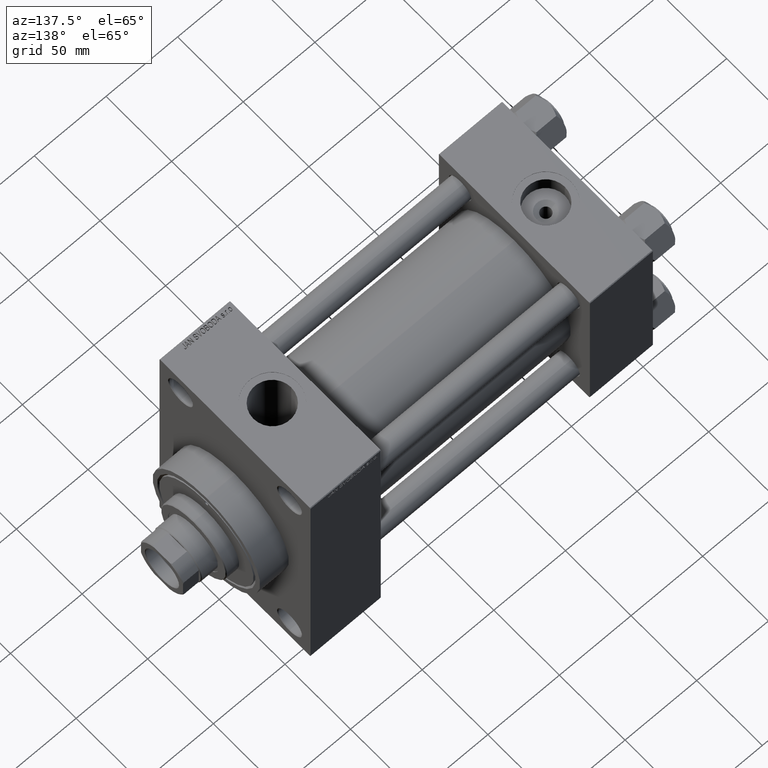
[diagram: clean part render]
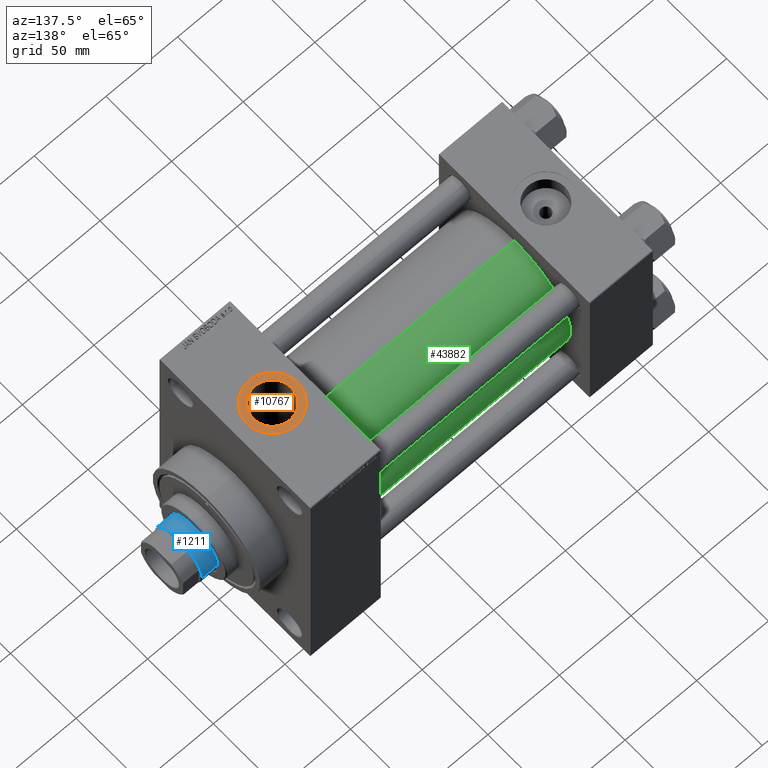
[diagram: same view with three faces highlighted in distinct colors, each labeled with its STEP entity id]
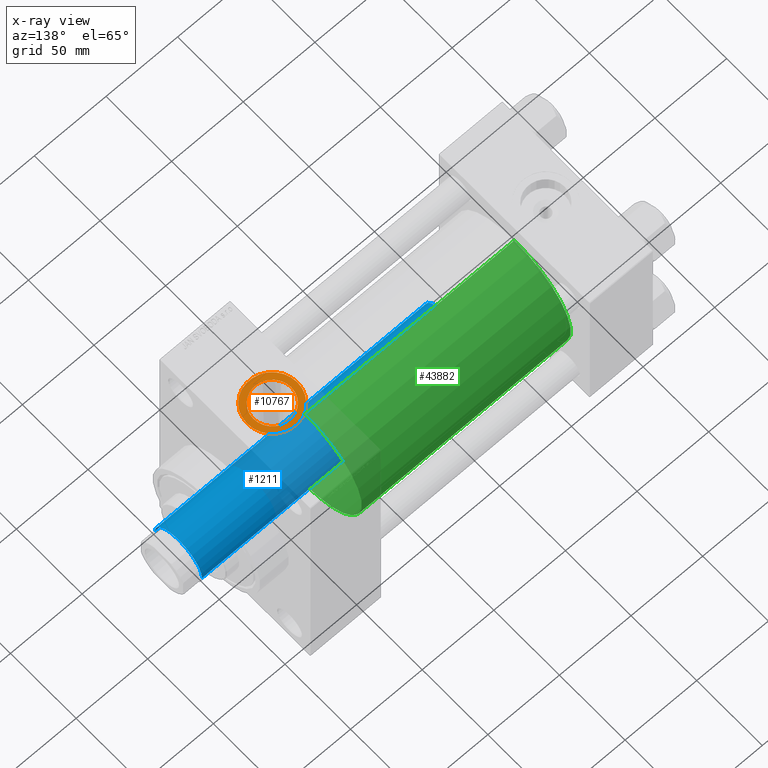
[diagram: x-ray of the same camera — body ghosted, the three highlighted faces saturated]
A machine part, auxiliary view with three faces highlighted in distinct colors.
The next image is the same camera in x-ray (body ghosted, the three faces saturated) — at least one of them is partly hidden behind the body in this view.
Their STEP definitions:

[orange] entity #10767 — the highlighted planar face has unit normal (0, 0, 1).
#707 = AXIS2_PLACEMENT_3D ( 'NONE', #43667, #2758, #2994 ) ;
#836 = DIRECTION ( 'NONE',  ( -0.000000000000000000, -0.000000000000000000, -1.000000000000000000 ) ) ;
#2257 = PLANE ( 'NONE',  #30170 ) ;
#2491 = AXIS2_PLACEMENT_3D ( 'NONE', #40638, #18609, #33363 ) ;
#2578 = ORIENTED_EDGE ( 'NONE', *, *, #7919, .T. ) ;
#2758 = DIRECTION ( 'NONE',  ( -0.000000000000000000, -0.000000000000000000, -1.000000000000000000 ) ) ;
#2783 = DIRECTION ( 'NONE',  ( 0.000000000000000000, 0.000000000000000000, 1.000000000000000000 ) ) ;
#2994 = DIRECTION ( 'NONE',  ( 1.000000000000000000, 0.000000000000000000, 0.000000000000000000 ) ) ;
#3003 = CIRCLE ( 'NONE', #30821, 17.50000000000001421 ) ;
#5165 = DIRECTION ( 'NONE',  ( 0.000000000000000000, 0.000000000000000000, 1.000000000000000000 ) ) ;
#7919 = EDGE_CURVE ( 'NONE', #9497, #17059, #3003, .T. ) ;
#8272 = CARTESIAN_POINT ( 'NONE',  ( 199.7799999999999443, -1.086087741481131350E-14, 89.79999999999998295 ) ) ;
#8566 = CARTESIAN_POINT ( 'NONE',  ( 212.9999999999999716, -1.086087741481131350E-14, 89.79999999999998295 ) ) ;
#9211 = CIRCLE ( 'NONE', #707, 13.22000000000000952 ) ;
#9497 = VERTEX_POINT ( 'NONE', #35021 ) ;
#10767 = ADVANCED_FACE ( 'NONE', ( #31065, #42697 ), #2257, .T. ) ;
#11745 = DIRECTION ( 'NONE',  ( 1.000000000000000000, 0.000000000000000000, 0.000000000000000000 ) ) ;
#15081 = EDGE_CURVE ( 'NONE', #17059, #9497, #27891, .T. ) ;
#15602 = CARTESIAN_POINT ( 'NONE',  ( 212.9999999999999716, -1.086087741481131350E-14, 89.79999999999998295 ) ) ;
#17059 = VERTEX_POINT ( 'NONE', #20530 ) ;
#18534 = VERTEX_POINT ( 'NONE', #31784 ) ;
#18609 = DIRECTION ( 'NONE',  ( 0.000000000000000000, 0.000000000000000000, 1.000000000000000000 ) ) ;
#20530 = CARTESIAN_POINT ( 'NONE',  ( 195.4999999999999432, -8.717745516303440521E-15, 89.79999999999998295 ) ) ;
#20653 = DIRECTION ( 'NONE',  ( 1.000000000000000000, 0.000000000000000000, -0.000000000000000000 ) ) ;
#24368 = ORIENTED_EDGE ( 'NONE', *, *, #41900, .T. ) ;
#25514 = CIRCLE ( 'NONE', #27072, 13.22000000000000952 ) ;
#27072 = AXIS2_PLACEMENT_3D ( 'NONE', #15602, #836, #11745 ) ;
#27891 = CIRCLE ( 'NONE', #2491, 17.50000000000001421 ) ;
#29732 = ORIENTED_EDGE ( 'NONE', *, *, #40003, .T. ) ;
#30170 = AXIS2_PLACEMENT_3D ( 'NONE', #8566, #5165, #20653 ) ;
#30821 = AXIS2_PLACEMENT_3D ( 'NONE', #39347, #2783, #43465 ) ;
#31065 = FACE_BOUND ( 'NONE', #47653, .T. ) ;
#31784 = CARTESIAN_POINT ( 'NONE',  ( 226.2199999999999704, -9.241894346338509984E-15, 89.79999999999998295 ) ) ;
#33363 = DIRECTION ( 'NONE',  ( 1.000000000000000000, 0.000000000000000000, 0.000000000000000000 ) ) ;
#35021 = CARTESIAN_POINT ( 'NONE',  ( 230.4999999999999716, -1.086087741481131350E-14, 89.79999999999998295 ) ) ;
#35259 = ORIENTED_EDGE ( 'NONE', *, *, #15081, .T. ) ;
#38301 = VERTEX_POINT ( 'NONE', #8272 ) ;
#39347 = CARTESIAN_POINT ( 'NONE',  ( 212.9999999999999716, -1.086087741481131350E-14, 89.79999999999998295 ) ) ;
#40003 = EDGE_CURVE ( 'NONE', #38301, #18534, #9211, .T. ) ;
#40638 = CARTESIAN_POINT ( 'NONE',  ( 212.9999999999999716, -1.086087741481131350E-14, 89.79999999999998295 ) ) ;
#41900 = EDGE_CURVE ( 'NONE', #18534, #38301, #25514, .T. ) ;
#42697 = FACE_OUTER_BOUND ( 'NONE', #47834, .T. ) ;
#43465 = DIRECTION ( 'NONE',  ( 1.000000000000000000, 0.000000000000000000, 0.000000000000000000 ) ) ;
#43667 = CARTESIAN_POINT ( 'NONE',  ( 212.9999999999999716, -1.086087741481131350E-14, 89.79999999999998295 ) ) ;
#47653 = EDGE_LOOP ( 'NONE', ( #29732, #24368 ) ) ;
#47834 = EDGE_LOOP ( 'NONE', ( #2578, #35259 ) ) ;

[blue] entity #1211 — the highlighted cylindrical surface (edge-blend (fillet) strip) has radius 18 mm, axis along (-1, 0, 0).
#1211 = ADVANCED_FACE ( 'NONE', ( #9598 ), #32083, .T. ) ;
#1789 = EDGE_CURVE ( 'NONE', #33809, #25564, #42343, .T. ) ;
#4432 = CARTESIAN_POINT ( 'NONE',  ( -18.00000000000000000, 0.000000000000000000, 235.0000000000000000 ) ) ;
#4462 = AXIS2_PLACEMENT_3D ( 'NONE', #46392, #40059, #43696 ) ;
#6149 = CARTESIAN_POINT ( 'NONE',  ( 18.00000000000000000, 2.204364238465235428E-15, 46.00000000000000000 ) ) ;
#7071 = CIRCLE ( 'NONE', #23375, 18.00000000000000000 ) ;
#8510 = DIRECTION ( 'NONE',  ( 1.000000000000000000, 0.000000000000000000, 0.000000000000000000 ) ) ;
#8931 = ORIENTED_EDGE ( 'NONE', *, *, #14401, .T. ) ;
#9598 = FACE_OUTER_BOUND ( 'NONE', #44996, .T. ) ;
#9842 = ORIENTED_EDGE ( 'NONE', *, *, #1789, .T. ) ;
#11150 = VERTEX_POINT ( 'NONE', #16970 ) ;
#11276 = ORIENTED_EDGE ( 'NONE', *, *, #21317, .T. ) ;
#14401 = EDGE_CURVE ( 'NONE', #11150, #37157, #7071, .T. ) ;
#15584 = EDGE_CURVE ( 'NONE', #11150, #25564, #18179, .T. ) ;
#15773 = CARTESIAN_POINT ( 'NONE',  ( 0.000000000000000000, 0.000000000000000000, 46.00000000000000000 ) ) ;
#16970 = CARTESIAN_POINT ( 'NONE',  ( 18.00000000000000000, 2.204364238465235428E-15, 234.5000000000000000 ) ) ;
#17703 = CARTESIAN_POINT ( 'NONE',  ( 18.00000000000000000, 2.204364238465235428E-15, 235.0000000000000000 ) ) ;
#18179 = LINE ( 'NONE', #17703, #31788 ) ;
#18782 = DIRECTION ( 'NONE',  ( 0.000000000000000000, 0.000000000000000000, -1.000000000000000000 ) ) ;
#19674 = DIRECTION ( 'NONE',  ( -0.000000000000000000, -0.000000000000000000, -1.000000000000000000 ) ) ;
#21317 = EDGE_CURVE ( 'NONE', #37157, #33809, #30098, .T. ) ;
#21463 = AXIS2_PLACEMENT_3D ( 'NONE', #15773, #26439, #8510 ) ;
#21817 = DIRECTION ( 'NONE',  ( -0.000000000000000000, -0.000000000000000000, -1.000000000000000000 ) ) ;
#22884 = CARTESIAN_POINT ( 'NONE',  ( 0.000000000000000000, 0.000000000000000000, 234.5000000000000000 ) ) ;
#23375 = AXIS2_PLACEMENT_3D ( 'NONE', #22884, #18782, #26987 ) ;
#25564 = VERTEX_POINT ( 'NONE', #6149 ) ;
#26439 = DIRECTION ( 'NONE',  ( 0.000000000000000000, 0.000000000000000000, 1.000000000000000000 ) ) ;
#26987 = DIRECTION ( 'NONE',  ( 1.000000000000000000, 0.000000000000000000, 0.000000000000000000 ) ) ;
#30098 = LINE ( 'NONE', #4432, #38841 ) ;
#31788 = VECTOR ( 'NONE', #21817, 1000.000000000000000 ) ;
#32083 = CYLINDRICAL_SURFACE ( 'NONE', #4462, 18.00000000000000000 ) ;
#33809 = VERTEX_POINT ( 'NONE', #46356 ) ;
#37157 = VERTEX_POINT ( 'NONE', #41327 ) ;
#38841 = VECTOR ( 'NONE', #19674, 1000.000000000000000 ) ;
#40059 = DIRECTION ( 'NONE',  ( -0.000000000000000000, -0.000000000000000000, -1.000000000000000000 ) ) ;
#41327 = CARTESIAN_POINT ( 'NONE',  ( -18.00000000000000000, 0.000000000000000000, 234.5000000000000000 ) ) ;
#42343 = CIRCLE ( 'NONE', #21463, 18.00000000000000000 ) ;
#43696 = DIRECTION ( 'NONE',  ( -1.000000000000000000, 0.000000000000000000, 0.000000000000000000 ) ) ;
#44665 = ORIENTED_EDGE ( 'NONE', *, *, #15584, .F. ) ;
#44996 = EDGE_LOOP ( 'NONE', ( #44665, #8931, #11276, #9842 ) ) ;
#46356 = CARTESIAN_POINT ( 'NONE',  ( -18.00000000000000000, 0.000000000000000000, 46.00000000000000000 ) ) ;
#46392 = CARTESIAN_POINT ( 'NONE',  ( 0.000000000000000000, 0.000000000000000000, 235.0000000000000000 ) ) ;

[green] entity #43882 — the highlighted cylindrical surface (partial cylindrical patch) has radius 43 mm, axis along (-1, -0, -0).
#739 = AXIS2_PLACEMENT_3D ( 'NONE', #24638, #28735, #6693 ) ;
#3432 = DIRECTION ( 'NONE',  ( 0.000000000000000000, 0.000000000000000000, 1.000000000000000000 ) ) ;
#3845 = AXIS2_PLACEMENT_3D ( 'NONE', #39989, #24762, #3432 ) ;
#5138 = VERTEX_POINT ( 'NONE', #29743 ) ;
#6246 = LINE ( 'NONE', #43299, #13911 ) ;
#6693 = DIRECTION ( 'NONE',  ( 0.000000000000000000, 0.000000000000000000, -1.000000000000000000 ) ) ;
#7244 = CARTESIAN_POINT ( 'NONE',  ( 190.0000000000000000, -2.602085213965210642E-15, 0.000000000000000000 ) ) ;
#10536 = DIRECTION ( 'NONE',  ( -1.000000000000000000, -0.000000000000000000, -0.000000000000000000 ) ) ;
#10743 = ORIENTED_EDGE ( 'NONE', *, *, #41203, .T. ) ;
#10884 = CYLINDRICAL_SURFACE ( 'NONE', #27789, 43.00000000000000000 ) ;
#10978 = CARTESIAN_POINT ( 'NONE',  ( 190.0000000000000000, -2.602085213965210642E-15, 43.00000000000000000 ) ) ;
#12369 = CIRCLE ( 'NONE', #3845, 43.00000000000000000 ) ;
#12522 = LINE ( 'NONE', #24842, #24562 ) ;
#13911 = VECTOR ( 'NONE', #21017, 1000.000000000000000 ) ;
#15321 = VERTEX_POINT ( 'NONE', #23319 ) ;
#16465 = VERTEX_POINT ( 'NONE', #23390 ) ;
#20847 = CIRCLE ( 'NONE', #739, 43.00000000000000000 ) ;
#21017 = DIRECTION ( 'NONE',  ( -1.000000000000000000, -0.000000000000000000, -0.000000000000000000 ) ) ;
#22008 = DIRECTION ( 'NONE',  ( -1.000000000000000000, -0.000000000000000000, -0.000000000000000000 ) ) ;
#23319 = CARTESIAN_POINT ( 'NONE',  ( 43.99999999999998579, -2.602085213965210642E-15, 43.00000000000000000 ) ) ;
#23390 = CARTESIAN_POINT ( 'NONE',  ( 190.0000000000000000, 2.663896022368408223E-15, -43.00000000000000000 ) ) ;
#24562 = VECTOR ( 'NONE', #10536, 1000.000000000000000 ) ;
#24638 = CARTESIAN_POINT ( 'NONE',  ( 190.0000000000000000, -2.602085213965210642E-15, 0.000000000000000000 ) ) ;
#24762 = DIRECTION ( 'NONE',  ( 1.000000000000000000, -0.000000000000000000, 0.000000000000000000 ) ) ;
#24842 = CARTESIAN_POINT ( 'NONE',  ( 190.0000000000000000, 2.663896022368408223E-15, -43.00000000000000000 ) ) ;
#25980 = ORIENTED_EDGE ( 'NONE', *, *, #44123, .F. ) ;
#27789 = AXIS2_PLACEMENT_3D ( 'NONE', #7244, #22008, #36769 ) ;
#28735 = DIRECTION ( 'NONE',  ( 1.000000000000000000, 0.000000000000000000, 0.000000000000000000 ) ) ;
#29743 = CARTESIAN_POINT ( 'NONE',  ( 43.99999999999998579, 2.663896022368408223E-15, -43.00000000000000000 ) ) ;
#29825 = ORIENTED_EDGE ( 'NONE', *, *, #36585, .T. ) ;
#32233 = EDGE_LOOP ( 'NONE', ( #25980, #29825, #10743, #43121 ) ) ;
#36585 = EDGE_CURVE ( 'NONE', #16465, #5138, #12522, .T. ) ;
#36769 = DIRECTION ( 'NONE',  ( 0.000000000000000000, 0.000000000000000000, 1.000000000000000000 ) ) ;
#37711 = VERTEX_POINT ( 'NONE', #10978 ) ;
#39989 = CARTESIAN_POINT ( 'NONE',  ( 43.99999999999998579, -2.602085213965210642E-15, 0.000000000000000000 ) ) ;
#41203 = EDGE_CURVE ( 'NONE', #5138, #15321, #12369, .T. ) ;
#43121 = ORIENTED_EDGE ( 'NONE', *, *, #45874, .F. ) ;
#43299 = CARTESIAN_POINT ( 'NONE',  ( 190.0000000000000000, -2.602085213965210642E-15, 43.00000000000000000 ) ) ;
#43882 = ADVANCED_FACE ( 'NONE', ( #44044 ), #10884, .T. ) ;
#44044 = FACE_OUTER_BOUND ( 'NONE', #32233, .T. ) ;
#44123 = EDGE_CURVE ( 'NONE', #16465, #37711, #20847, .T. ) ;
#45874 = EDGE_CURVE ( 'NONE', #37711, #15321, #6246, .T. ) ;